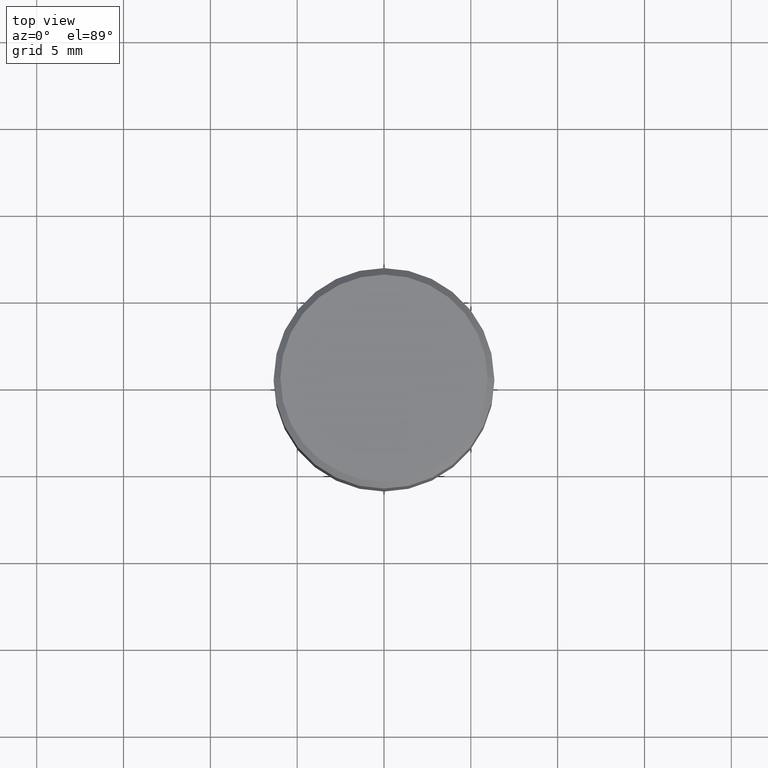
[diagram: clean part render]
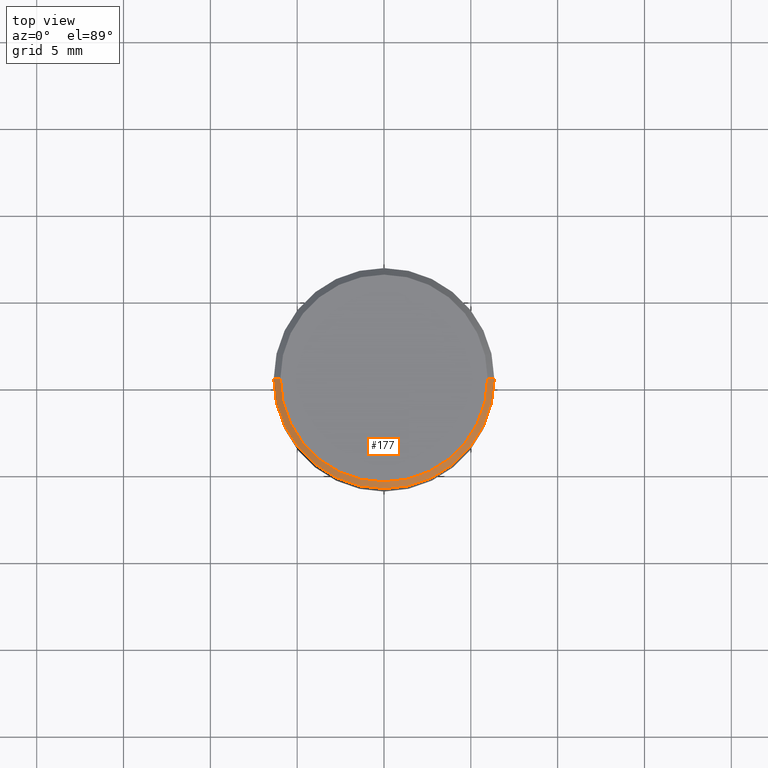
[diagram: same view with one face highlighted and labeled with its STEP entity id]
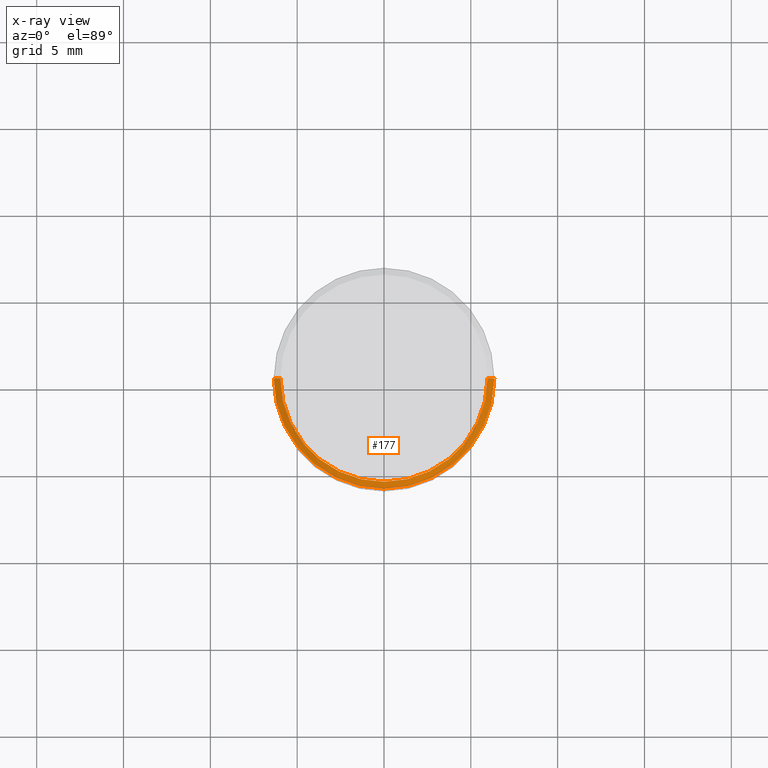
[diagram: x-ray of the same camera — body ghosted, the highlighted face saturated]
A machine part, top view. The second image highlights one B-rep face of the part: STEP entity #177.
The next image is the same camera in x-ray: the body ghosted, the highlighted face saturated — about 0% of this face is hidden behind the body in this view.
In plain terms, the highlighted conical surface has half-angle 45 deg.
Its self-contained STEP definition (entity closure, byte-faithful):
#13 = DIRECTION ( 'NONE',  ( 1.000000000000000000, -6.982962677686267499E-15, 4.878549297894958458E-29 ) ) ;
#16 = CIRCLE ( 'NONE', #440, 0.2500000000000000000 ) ;
#17 = VERTEX_POINT ( 'NONE', #249 ) ;
#22 = CARTESIAN_POINT ( 'NONE',  ( -0.2349999999999999867, 1.667182339297596256E-15, 1.568636843340762393E-16 ) ) ;
#30 = VERTEX_POINT ( 'NONE', #360 ) ;
#31 = DIRECTION ( 'NONE',  ( -2.445468806185136597E-29, 3.491481338843145583E-15, 1.000000000000000000 ) ) ;
#37 = CARTESIAN_POINT ( 'NONE',  ( -0.2500000000000000000, 1.693368449338919401E-15, -0.01499999999999999944 ) ) ;
#46 = EDGE_CURVE ( 'NONE', #30, #136, #16, .T. ) ;
#51 = ORIENTED_EDGE ( 'NONE', *, *, #46, .T. ) ;
#60 = VERTEX_POINT ( 'NONE', #22 ) ;
#69 = CARTESIAN_POINT ( 'NONE',  ( 3.668203209277705088E-31, -5.237222008264718399E-17, -0.01499999999999999944 ) ) ;
#104 = CONICAL_SURFACE ( 'NONE', #310, 0.2500000000000000000, 0.7853981633974435050 ) ;
#116 = FACE_OUTER_BOUND ( 'NONE', #391, .T. ) ;
#136 = VERTEX_POINT ( 'NONE', #138 ) ;
#138 = CARTESIAN_POINT ( 'NONE',  ( 0.2500000000000000000, -1.798112889504214151E-15, -0.01499999999999999944 ) ) ;
#143 = DIRECTION ( 'NONE',  ( -1.000000000000000000, 6.982962677686266711E-15, 0.000000000000000000 ) ) ;
#146 = CARTESIAN_POINT ( 'NONE',  ( 3.668203209277705088E-31, -5.237222008264718399E-17, -0.01499999999999999944 ) ) ;
#177 = ADVANCED_FACE ( 'NONE', ( #116 ), #104, .T. ) ;
#185 = DIRECTION ( 'NONE',  ( -0.7071067811865441310, 2.468850131082221167E-15, -0.7071067811865509034 ) ) ;
#191 = EDGE_CURVE ( 'NONE', #17, #136, #428, .T. ) ;
#194 = DIRECTION ( 'NONE',  ( -2.445468806185136597E-29, 3.491481338843145583E-15, 1.000000000000000000 ) ) ;
#220 = CIRCLE ( 'NONE', #422, 0.2349999999999999867 ) ;
#240 = EDGE_CURVE ( 'NONE', #60, #30, #366, .T. ) ;
#249 = CARTESIAN_POINT ( 'NONE',  ( 0.2349999999999999867, -1.689856874500919833E-15, 1.568636843340994368E-16 ) ) ;
#266 = CARTESIAN_POINT ( 'NONE',  ( 0.2500000000000000000, -1.767496719525530167E-15, -0.01499999999999999944 ) ) ;
#310 = AXIS2_PLACEMENT_3D ( 'NONE', #146, #367, #143 ) ;
#323 = ORIENTED_EDGE ( 'NONE', *, *, #191, .F. ) ;
#345 = ORIENTED_EDGE ( 'NONE', *, *, #377, .F. ) ;
#359 = ORIENTED_EDGE ( 'NONE', *, *, #240, .T. ) ;
#360 = CARTESIAN_POINT ( 'NONE',  ( -0.2500000000000000000, 1.047539074263934229E-15, -0.01499999999999999944 ) ) ;
#364 = VECTOR ( 'NONE', #399, 39.37007874015748143 ) ;
#366 = LINE ( 'NONE', #37, #386 ) ;
#367 = DIRECTION ( 'NONE',  ( 2.445468806185136597E-29, -3.491481338843145583E-15, -1.000000000000000000 ) ) ;
#377 = EDGE_CURVE ( 'NONE', #60, #17, #220, .T. ) ;
#386 = VECTOR ( 'NONE', #185, 39.37007874015748143 ) ;
#391 = EDGE_LOOP ( 'NONE', ( #323, #345, #359, #51 ) ) ;
#399 = DIRECTION ( 'NONE',  ( 0.7071067811865441310, -7.319954787623245001E-15, -0.7071067811865509034 ) ) ;
#411 = CARTESIAN_POINT ( 'NONE',  ( -3.836052468622837406E-45, 5.476866265946494270E-31, 1.568636843340877764E-16 ) ) ;
#422 = AXIS2_PLACEMENT_3D ( 'NONE', #411, #194, #13 ) ;
#427 = DIRECTION ( 'NONE',  ( 1.000000000000000000, -6.982962677686266711E-15, 0.000000000000000000 ) ) ;
#428 = LINE ( 'NONE', #266, #364 ) ;
#440 = AXIS2_PLACEMENT_3D ( 'NONE', #69, #31, #427 ) ;